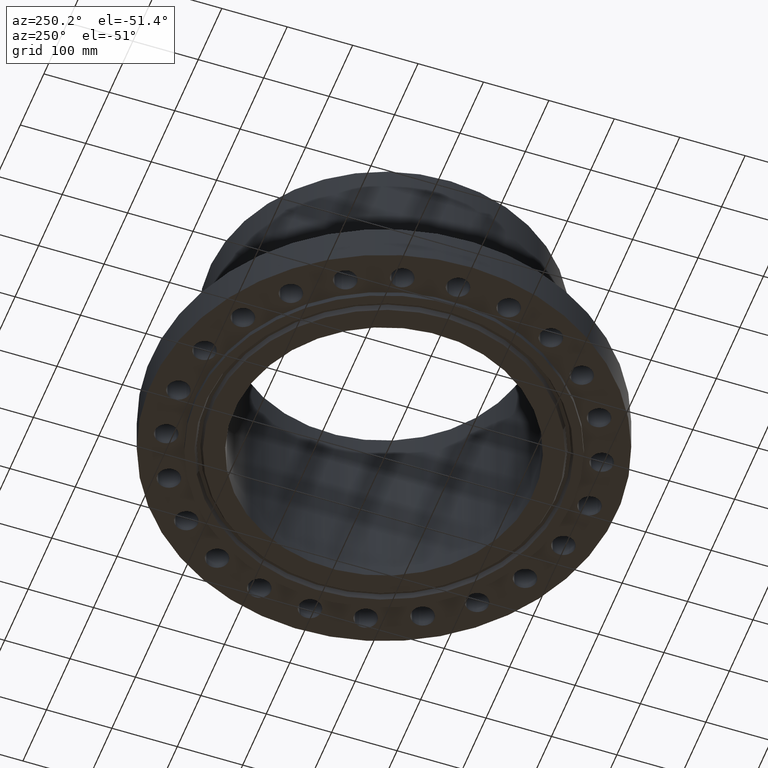
[diagram: clean part render]
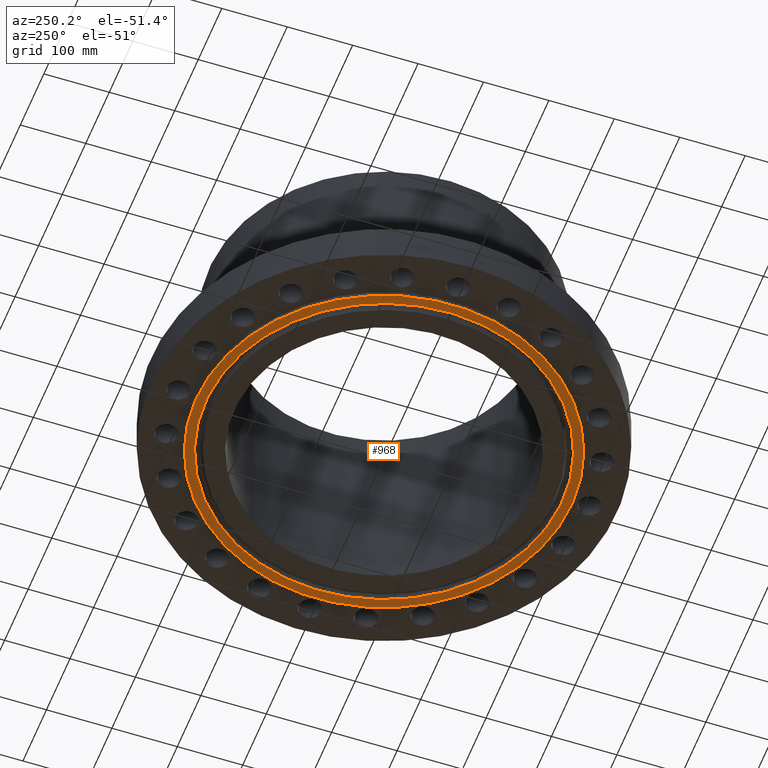
[diagram: same view with one face highlighted and labeled with its STEP entity id]
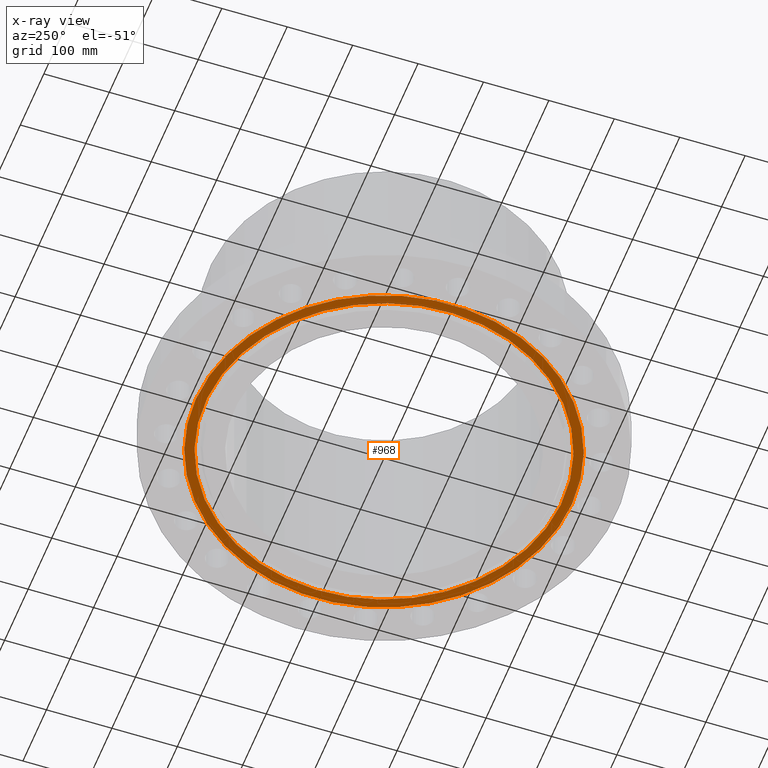
[diagram: x-ray of the same camera — body ghosted, the highlighted face saturated]
A machine part, auxiliary view. The second image highlights one B-rep face of the part: STEP entity #968.
The next image is the same camera in x-ray: the body ghosted, the highlighted face saturated — about 0% of this face is hidden behind the body in this view.
In plain terms, the highlighted planar face has unit normal (0, 0, -1).
Its self-contained STEP definition (entity closure, byte-faithful):
#726=AXIS2_PLACEMENT_3D('Plane Axis2P3D',#723,#724,#725) ;
#917=AXIS2_PLACEMENT_3D('Circle Axis2P3D',#915,#916,$) ;
#936=AXIS2_PLACEMENT_3D('Circle Axis2P3D',#934,#935,$) ;
#948=AXIS2_PLACEMENT_3D('Circle Axis2P3D',#946,#947,$) ;
#957=AXIS2_PLACEMENT_3D('Circle Axis2P3D',#955,#956,$) ;
#723=CARTESIAN_POINT('Axis2P3D Location',(0.,9.00000000004,-0.313000000001)) ;
#912=CARTESIAN_POINT('Vertex',(-5.14639344417,-9.42041001065,-0.313000000001)) ;
#915=CARTESIAN_POINT('Axis2P3D Location',(0.,0.,-0.313000000001)) ;
#919=CARTESIAN_POINT('Vertex',(5.14639344417,9.42041001065,-0.313000000001)) ;
#934=CARTESIAN_POINT('Axis2P3D Location',(0.,0.,-0.313000000001)) ;
#946=CARTESIAN_POINT('Axis2P3D Location',(0.,0.,-0.313000000001)) ;
#950=CARTESIAN_POINT('Vertex',(-5.42350140548,-9.92765273142,-0.313000000001)) ;
#952=CARTESIAN_POINT('Vertex',(5.42350140548,9.92765273142,-0.313000000001)) ;
#955=CARTESIAN_POINT('Axis2P3D Location',(0.,0.,-0.313000000001)) ;
#724=DIRECTION('Axis2P3D Direction',(0.,0.,-0.0393700787402)) ;
#725=DIRECTION('Axis2P3D XDirection',(0.0393700787402,0.,0.)) ;
#916=DIRECTION('Axis2P3D Direction',(0.,0.,-0.0393700787402)) ;
#935=DIRECTION('Axis2P3D Direction',(0.,0.,-0.0393700787402)) ;
#947=DIRECTION('Axis2P3D Direction',(0.,0.,-0.0393700787402)) ;
#956=DIRECTION('Axis2P3D Direction',(0.,0.,-0.0393700787402)) ;
#961=ORIENTED_EDGE('',*,*,#954,.T.) ;
#962=ORIENTED_EDGE('',*,*,#959,.T.) ;
#965=ORIENTED_EDGE('',*,*,#938,.F.) ;
#966=ORIENTED_EDGE('',*,*,#921,.F.) ;
#967=FACE_BOUND('',#964,.T.) ;
#968=ADVANCED_FACE('PartBody',(#963,#967),#727,.T.) ;
#918=CIRCLE('generated circle',#917,10.7345) ;
#937=CIRCLE('generated circle',#936,10.7345) ;
#949=CIRCLE('generated circle',#948,11.3125) ;
#958=CIRCLE('generated circle',#957,11.3125) ;
#921=EDGE_CURVE('',#913,#920,#918,.T.) ;
#938=EDGE_CURVE('',#920,#913,#937,.T.) ;
#954=EDGE_CURVE('',#951,#953,#949,.T.) ;
#959=EDGE_CURVE('',#953,#951,#958,.T.) ;
#960=EDGE_LOOP('',(#961,#962)) ;
#964=EDGE_LOOP('',(#965,#966)) ;
#963=FACE_OUTER_BOUND('',#960,.T.) ;
#727=PLANE('',#726) ;
#913=VERTEX_POINT('',#912) ;
#920=VERTEX_POINT('',#919) ;
#951=VERTEX_POINT('',#950) ;
#953=VERTEX_POINT('',#952) ;